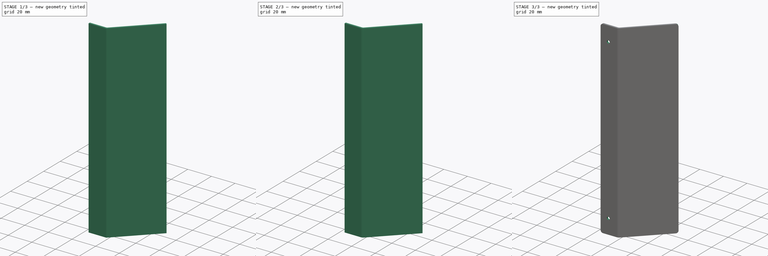
[diagram: build sequence overview — one tinted view per stage of 3, left to right]
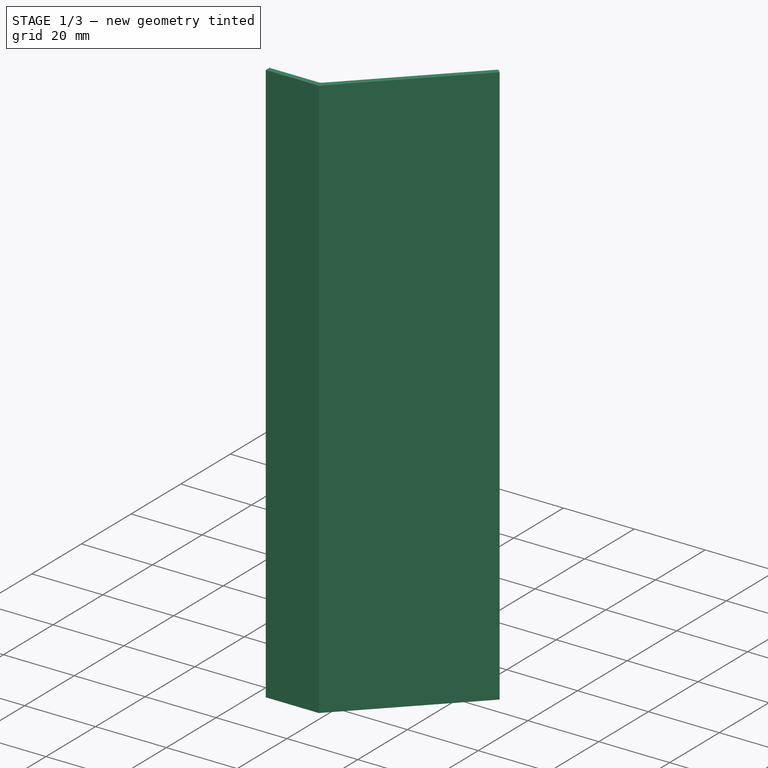
[diagram: stage 1 of 3 — iso view after this stage's code; geometry added in this stage tinted green]
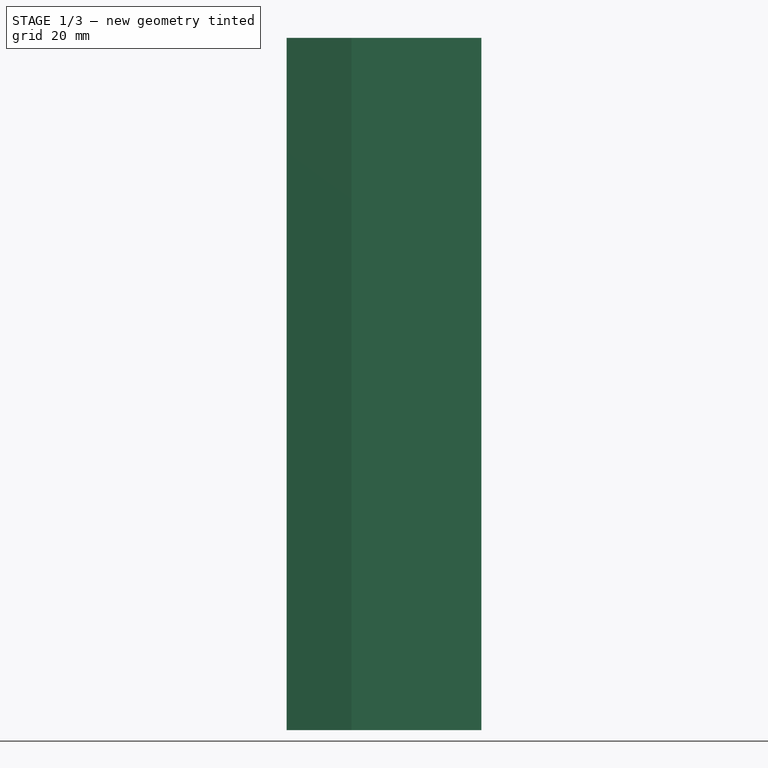
[diagram: stage 1 of 3 — front view after this stage's code; geometry added in this stage tinted green]
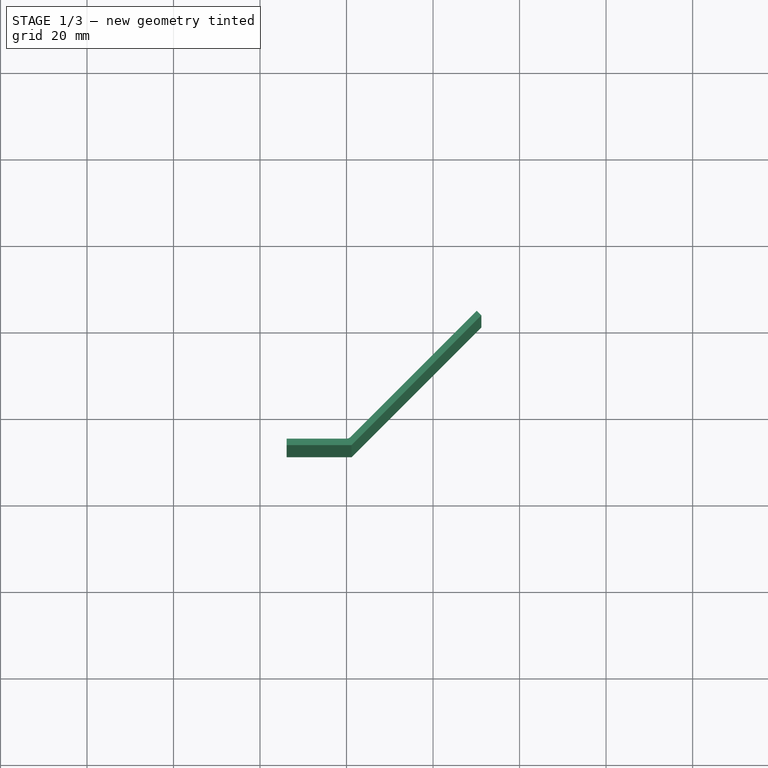
[diagram: stage 1 of 3 — top view after this stage's code; geometry added in this stage tinted green]
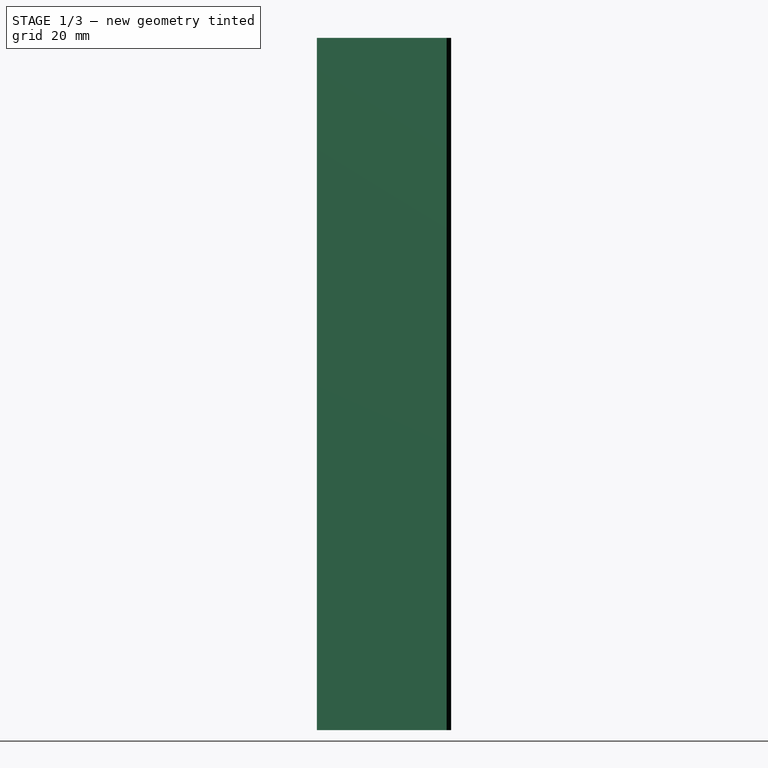
[diagram: stage 1 of 3 — right view after this stage's code; geometry added in this stage tinted green]
FCSTD DOCUMENT  (FreeCAD 0.14R3310 (Git))
Label: 16. ESQUINA CABLES CORTA
License: CC-BY 3.0
LicenseURL: http://creativecommons.org/licenses/by/3.0/
objects: PartDesign::Fillet×3, Sketcher::SketchObject×2, PartDesign::Pad×1, PartDesign::Pocket×1
note: 9 computed .brp shape members not serialized (recipe doc carries the construction recipe); baked Part::Feature solids carry a one-line shape summary decoded from their .brp

FEATURE [Sketcher::SketchObject] Sketch
  sketch-geometry (6):
    g0: LineSegment StartX=-33.84 StartY=-7.26 StartZ=0 EndX=-19.4613 EndY=-7.26 EndZ=0
    g1: LineSegment StartX=-18.84 StartY=-8.76 StartZ=0 EndX=-33.84 EndY=-8.76 EndZ=0
    g2: LineSegment StartX=-33.84 StartY=-8.76 StartZ=0 EndX=-33.84 EndY=-7.26 EndZ=0
    g3: LineSegment StartX=-18.84 StartY=-8.76 StartZ=0 EndX=11.1603 EndY=21.2403 EndZ=0
    g4: LineSegment StartX=-19.4613 StartY=-7.26 StartZ=0 EndX=10.0997 EndY=22.301 EndZ=0
    g5: LineSegment StartX=10.0997 StartY=22.301 StartZ=0 EndX=11.1603 EndY=21.2403 EndZ=0
  constraints (18):
    c: Coincident(g1,g2)
    c: Coincident(g2,g0)
    c: Horizontal(g0)
    c: Horizontal(g1)
    c: Vertical(g2)
    c: Coincident(g3,g1)
    c: Coincident(g4,g0)
    c: Coincident(g5,g4)
    c: Coincident(g5,g3)
    c: Angle(g4,g5) = 1.5708
    c: Distance(g5) = 1.5
    c: Parallel(g4,g3)
    c: DistanceY(g-1,g0) = -7.26
    c: Angle(g4,g0) = 2.35619
    c: Distance(g2) = 1.5
    c: DistanceX(g-2,g0) = -33.84
    c: Distance(g1) = 15
    c: Distance(g4,g1) = 31.061
FEATURE [PartDesign::Pad] Pad
  Length = 160
  Length2 = 100
  Sketch = -> Sketch
  Type = 0
FEATURE [PartDesign::Fillet] Fillet
  Base = -> Pad [Edge8]
  Radius = 1.5
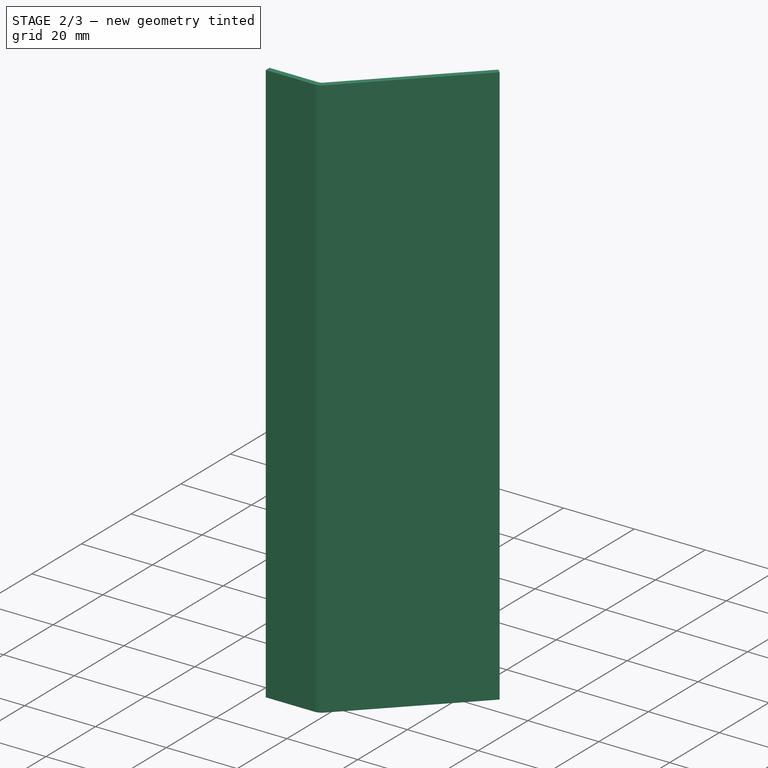
[diagram: stage 2 of 3 — iso view after this stage's code; geometry added in this stage tinted green]
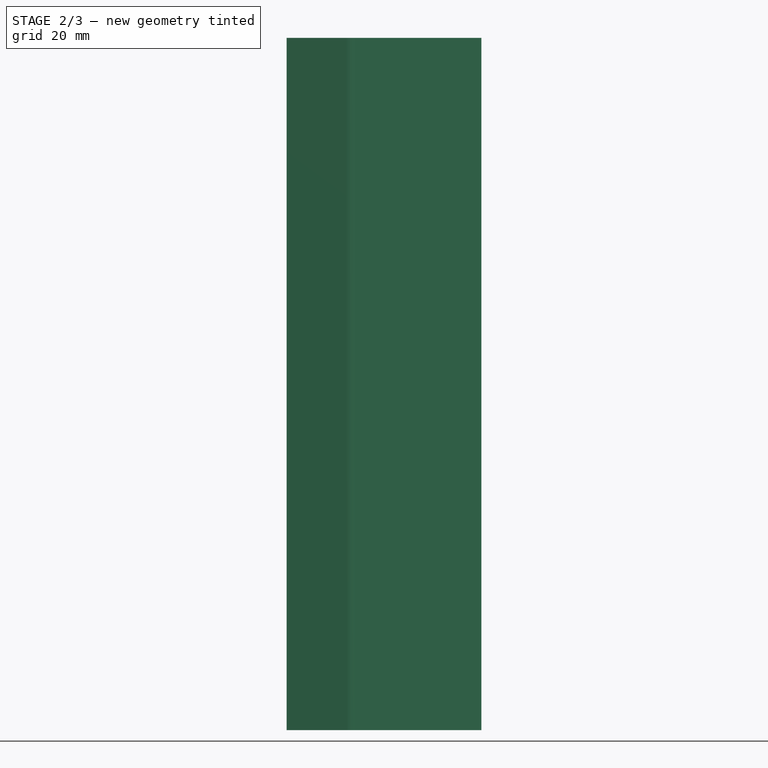
[diagram: stage 2 of 3 — front view after this stage's code; geometry added in this stage tinted green]
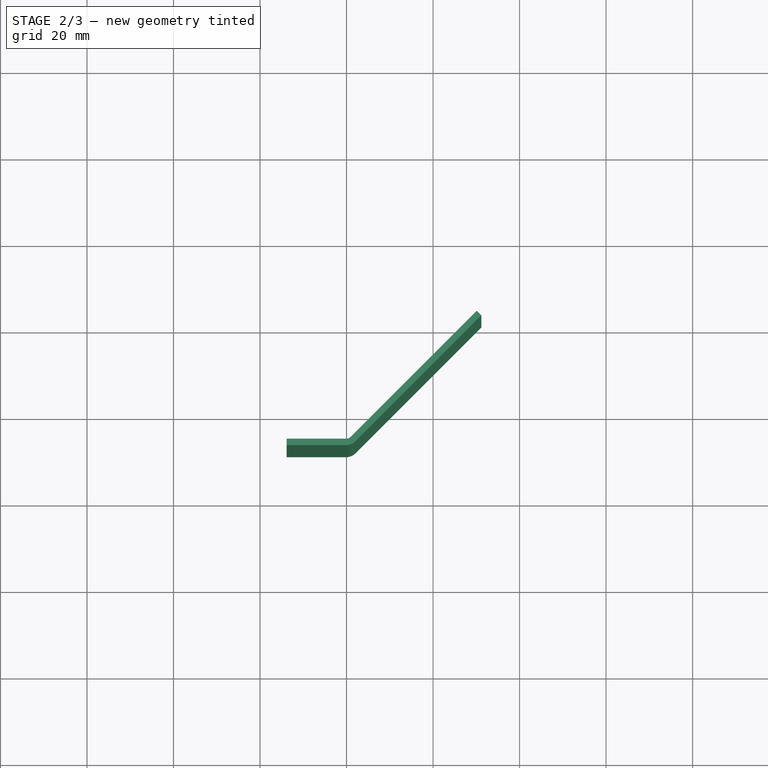
[diagram: stage 2 of 3 — top view after this stage's code; geometry added in this stage tinted green]
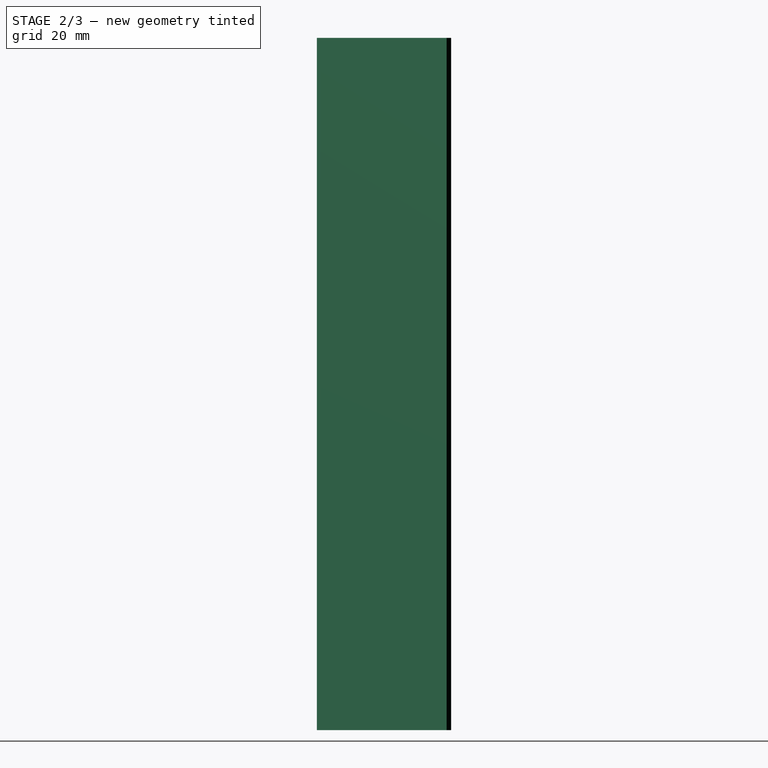
[diagram: stage 2 of 3 — right view after this stage's code; geometry added in this stage tinted green]
FEATURE [PartDesign::Fillet] Fillet001
  Base = -> Fillet [Edge20]
  Radius = 3
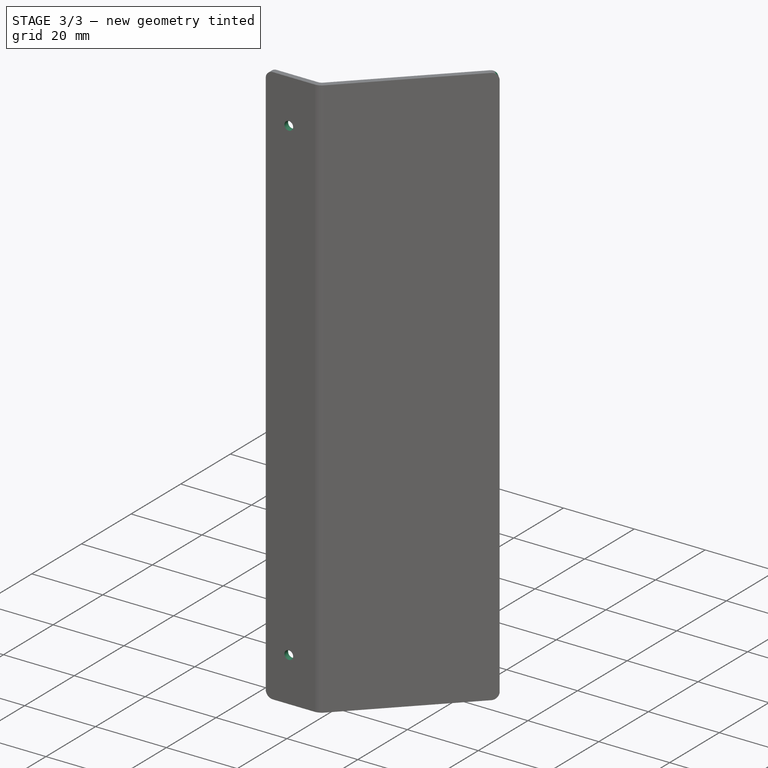
[diagram: stage 3 of 3 — iso view after this stage's code; geometry added in this stage tinted green]
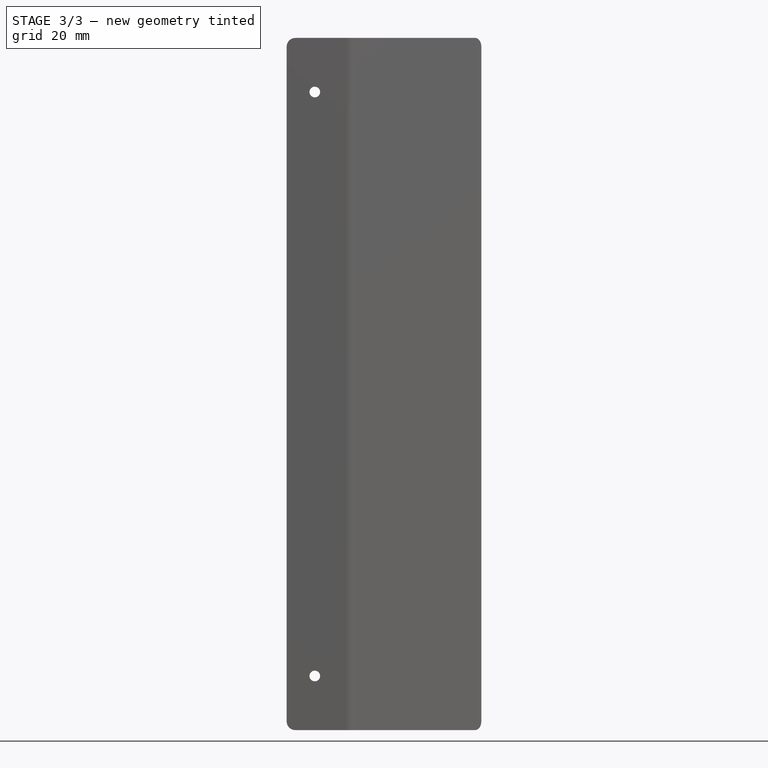
[diagram: stage 3 of 3 — front view after this stage's code; geometry added in this stage tinted green]
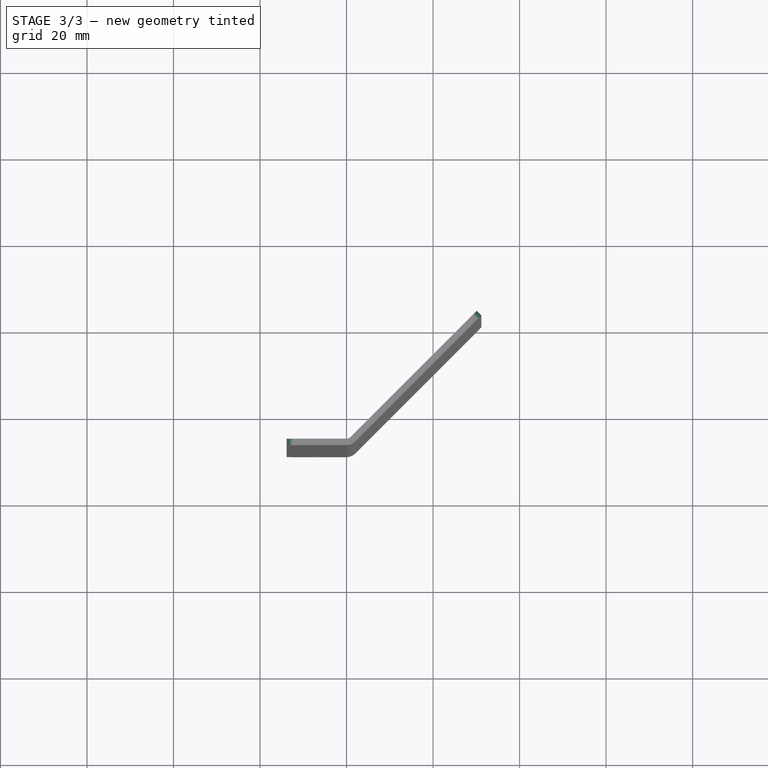
[diagram: stage 3 of 3 — top view after this stage's code; geometry added in this stage tinted green]
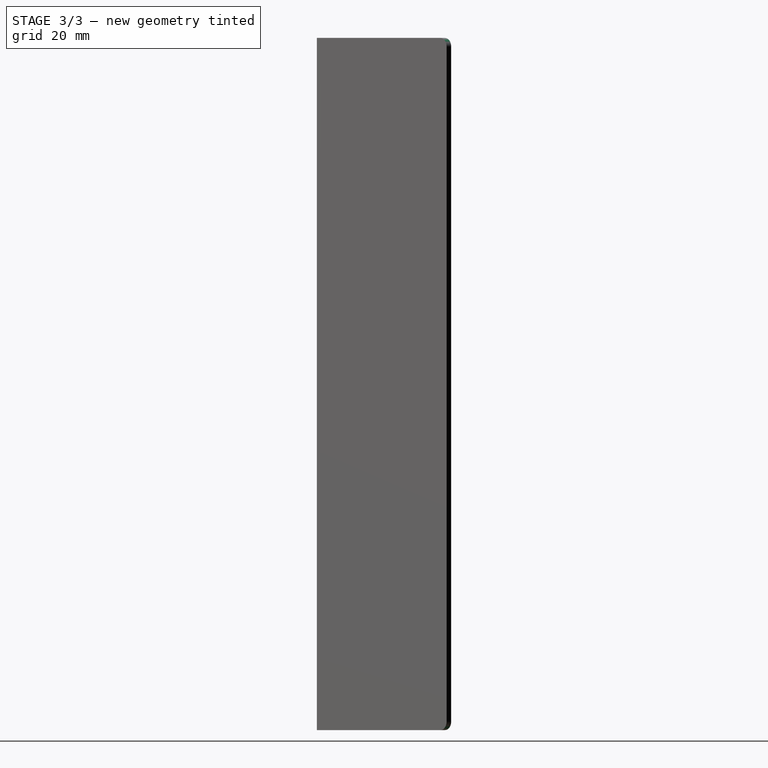
[diagram: stage 3 of 3 — right view after this stage's code; geometry added in this stage tinted green]
FEATURE [PartDesign::Fillet] Fillet002
  Base = -> Fillet001 [Edge21,Edge15,Edge3,Edge6]
  Radius = 2
FEATURE [Sketcher::SketchObject] Sketch001
  ExternalGeometry = -> [Fillet002]
  Placement = pos=(0,-8.76,0) rot=(1,0,0;1.5708rad)
  Support = -> Fillet002 [Face2]
  sketch-geometry (2):
    g0: Circle CenterX=-27.34 CenterY=12.5 CenterZ=0 NormalX=0 NormalY=0 NormalZ=1 Radius=1.23
    g1: Circle CenterX=-27.34 CenterY=147.5 CenterZ=0 NormalX=0 NormalY=0 NormalZ=1 Radius=1.23
  constraints (6):
    c: Distance(g0,g-3) = 6.5
    c: DistanceY(g-1,g0) = 12.5
    c: Radius(g0) = 1.23
    c: Equal(g1,g0)
    c: Distance(g0,g1) = 135
    c: Distance(g1,g-3) = 6.5
FEATURE [PartDesign::Pocket] Pocket
  Length = 5
  Sketch = -> Sketch001
  Type = 0
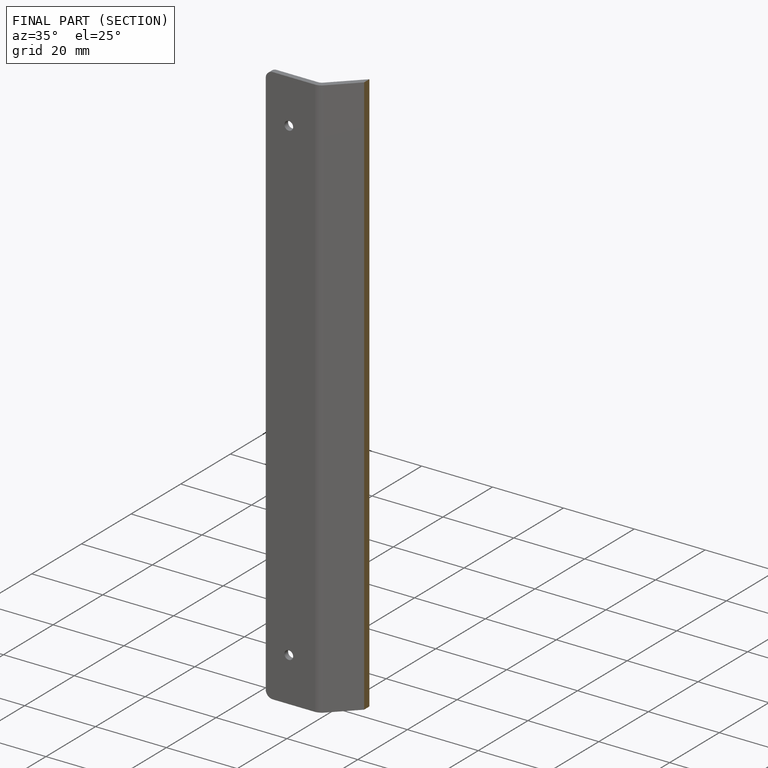
[diagram: finished part — half-section view (interior)]
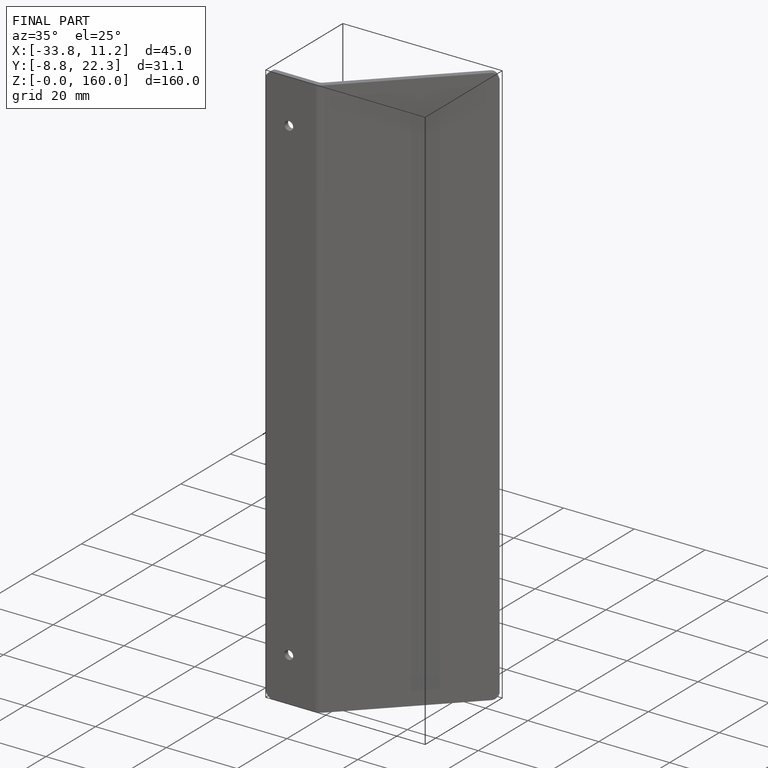
[diagram: finished part — iso view with bounding-box wireframe]
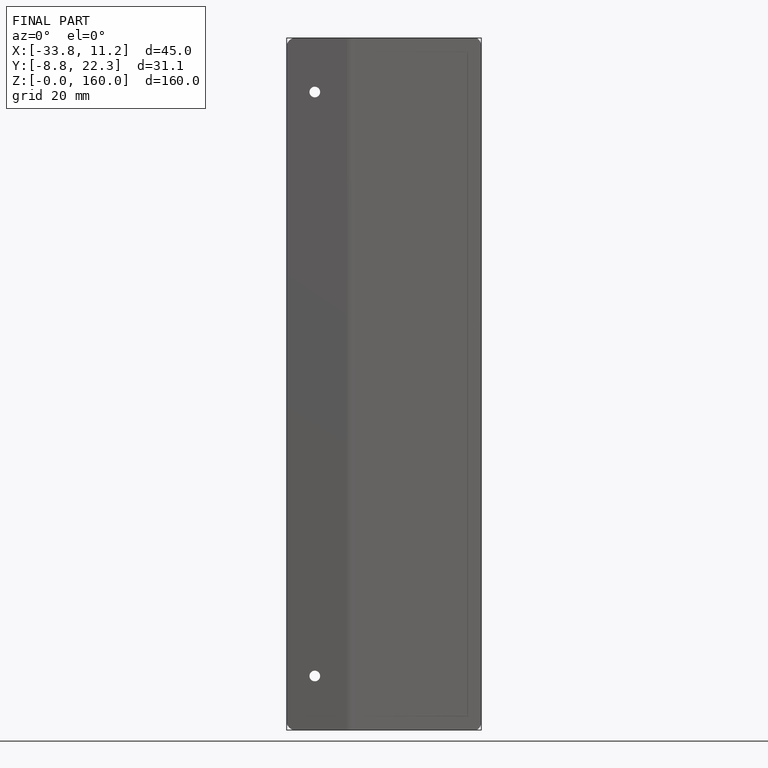
[diagram: finished part — front view with bounding-box wireframe]
